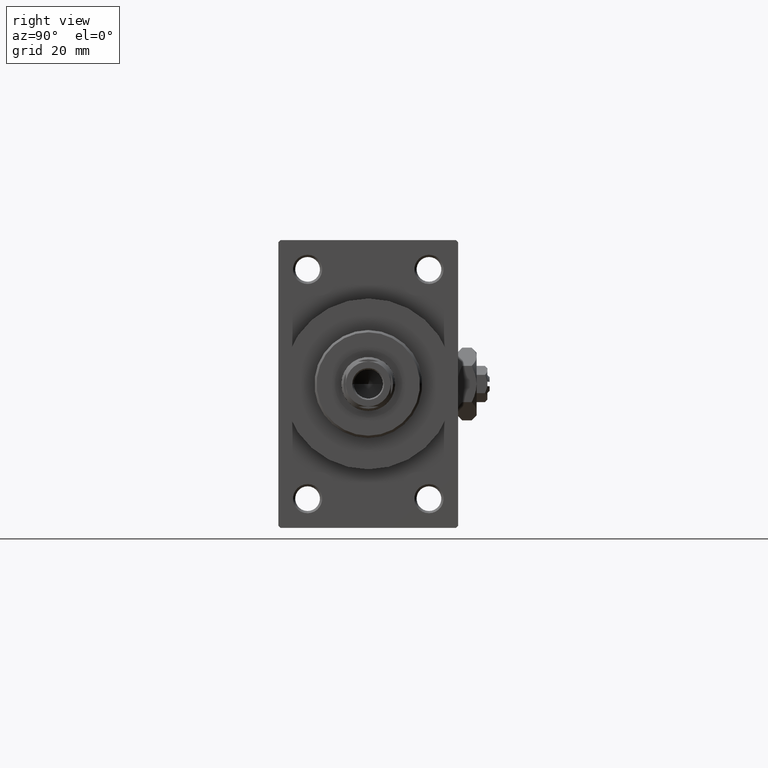
[diagram: clean part render]
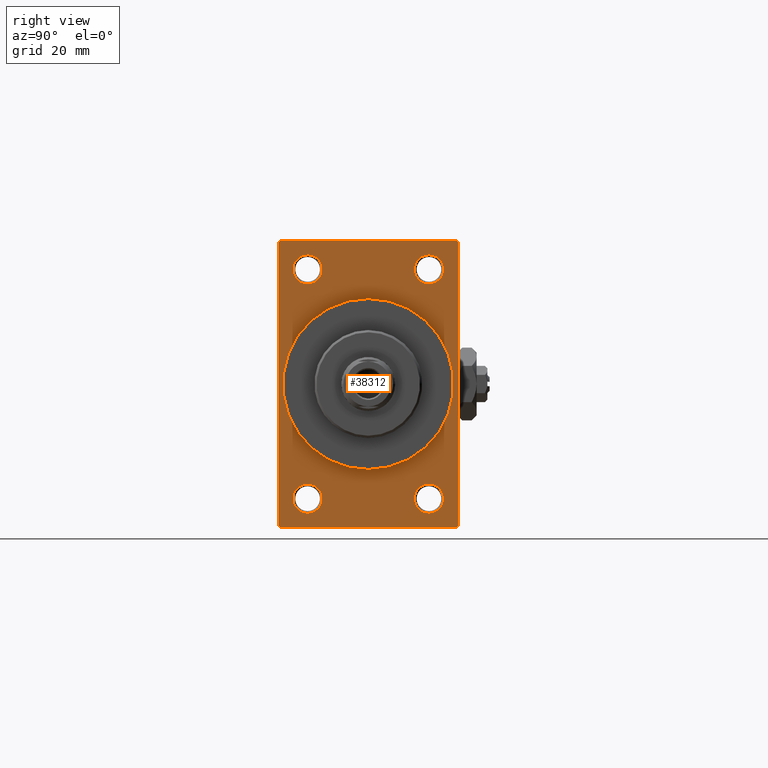
[diagram: same view with one face highlighted and labeled with its STEP entity id]
A machine part, right view. The second image highlights one B-rep face of the part: STEP entity #38312.
In plain terms, the highlighted planar face has unit normal (-1, 0, 0).
Its self-contained STEP definition (entity closure, byte-faithful):
#140 = VERTEX_POINT ( 'NONE', #47750 ) ;
#340 = DIRECTION ( 'NONE',  ( 0.000000000000000000, -1.000000000000000000, -1.734723475976807094E-16 ) ) ;
#355 = EDGE_CURVE ( 'NONE', #14639, #13511, #36569, .T. ) ;
#580 = DIRECTION ( 'NONE',  ( -1.000000000000000000, -0.000000000000000000, -0.000000000000000000 ) ) ;
#670 = VECTOR ( 'NONE', #42903, 1000.000000000000114 ) ;
#731 = EDGE_CURVE ( 'NONE', #42616, #19761, #23888, .T. ) ;
#1188 = DIRECTION ( 'NONE',  ( 0.000000000000000000, 0.000000000000000000, 1.000000000000000000 ) ) ;
#1371 = DIRECTION ( 'NONE',  ( 1.000000000000000000, 0.000000000000000000, 0.000000000000000000 ) ) ;
#1381 = ORIENTED_EDGE ( 'NONE', *, *, #43593, .F. ) ;
#1456 = CARTESIAN_POINT ( 'NONE',  ( 109.0000000000000142, -13.50000000000000533, -22.24999999999999289 ) ) ;
#1626 = ORIENTED_EDGE ( 'NONE', *, *, #32513, .T. ) ;
#1651 = CARTESIAN_POINT ( 'NONE',  ( 109.0000000000000142, -19.49999999999998579, 31.99999999999999289 ) ) ;
#2422 = AXIS2_PLACEMENT_3D ( 'NONE', #28358, #42796, #16706 ) ;
#2456 = AXIS2_PLACEMENT_3D ( 'NONE', #8957, #11953, #42253 ) ;
#2851 = CIRCLE ( 'NONE', #4449, 3.249999999999961364 ) ;
#3101 = CARTESIAN_POINT ( 'NONE',  ( 109.0000000000000142, -20.00000000000000000, 31.49999999999997868 ) ) ;
#3104 = CARTESIAN_POINT ( 'NONE',  ( 109.0000000000000142, 20.00000000000000000, 31.49999999999998579 ) ) ;
#3533 = CIRCLE ( 'NONE', #42369, 19.00000000000000000 ) ;
#3656 = ORIENTED_EDGE ( 'NONE', *, *, #16504, .F. ) ;
#4449 = AXIS2_PLACEMENT_3D ( 'NONE', #35646, #31915, #47087 ) ;
#4557 = VECTOR ( 'NONE', #26390, 1000.000000000000000 ) ;
#6082 = EDGE_LOOP ( 'NONE', ( #8609, #45935 ) ) ;
#6901 = FACE_BOUND ( 'NONE', #26643, .T. ) ;
#7665 = VECTOR ( 'NONE', #45961, 1000.000000000000000 ) ;
#8609 = ORIENTED_EDGE ( 'NONE', *, *, #14008, .T. ) ;
#8790 = DIRECTION ( 'NONE',  ( 0.000000000000000000, 0.000000000000000000, -1.000000000000000000 ) ) ;
#8941 = VERTEX_POINT ( 'NONE', #1651 ) ;
#8957 = CARTESIAN_POINT ( 'NONE',  ( 109.0000000000000142, 0.000000000000000000, 0.000000000000000000 ) ) ;
#9477 = VERTEX_POINT ( 'NONE', #31106 ) ;
#9803 = DIRECTION ( 'NONE',  ( -0.000000000000000000, -0.7071067811865474617, -0.7071067811865474617 ) ) ;
#10054 = VECTOR ( 'NONE', #21993, 1000.000000000000000 ) ;
#11122 = CARTESIAN_POINT ( 'NONE',  ( 109.0000000000000142, 13.49999999999999822, -22.24999999999999645 ) ) ;
#11252 = LINE ( 'NONE', #15226, #4557 ) ;
#11627 = VECTOR ( 'NONE', #23317, 1000.000000000000114 ) ;
#11953 = DIRECTION ( 'NONE',  ( 1.000000000000000000, 0.000000000000000000, 0.000000000000000000 ) ) ;
#12080 = CARTESIAN_POINT ( 'NONE',  ( 109.0000000000000142, -13.50000000000000533, -25.49999999999999645 ) ) ;
#12708 = DIRECTION ( 'NONE',  ( -1.000000000000000000, -0.000000000000000000, -0.000000000000000000 ) ) ;
#13437 = AXIS2_PLACEMENT_3D ( 'NONE', #28727, #39931, #43907 ) ;
#13511 = VERTEX_POINT ( 'NONE', #29193 ) ;
#13524 = CARTESIAN_POINT ( 'NONE',  ( 109.0000000000000142, 2.326828918379970970E-15, -19.00000000000000000 ) ) ;
#14008 = EDGE_CURVE ( 'NONE', #13511, #14639, #29755, .T. ) ;
#14293 = LINE ( 'NONE', #37611, #10054 ) ;
#14639 = VERTEX_POINT ( 'NONE', #11122 ) ;
#14835 = EDGE_CURVE ( 'NONE', #30104, #36426, #2851, .T. ) ;
#14930 = LINE ( 'NONE', #38750, #7665 ) ;
#15205 = LINE ( 'NONE', #29596, #35487 ) ;
#15226 = CARTESIAN_POINT ( 'NONE',  ( 109.0000000000000142, -19.49999999999998579, -32.00000000000000000 ) ) ;
#16178 = CARTESIAN_POINT ( 'NONE',  ( 109.0000000000000142, 13.49999999999999822, -25.50000000000000000 ) ) ;
#16504 = EDGE_CURVE ( 'NONE', #37227, #36022, #14930, .T. ) ;
#16706 = DIRECTION ( 'NONE',  ( 0.000000000000000000, 0.000000000000000000, 1.000000000000000000 ) ) ;
#16758 = VERTEX_POINT ( 'NONE', #26765 ) ;
#17227 = VERTEX_POINT ( 'NONE', #36073 ) ;
#17906 = AXIS2_PLACEMENT_3D ( 'NONE', #46720, #12708, #46478 ) ;
#18359 = EDGE_CURVE ( 'NONE', #32945, #16758, #11252, .T. ) ;
#19586 = ORIENTED_EDGE ( 'NONE', *, *, #731, .T. ) ;
#19761 = VERTEX_POINT ( 'NONE', #44927 ) ;
#20030 = DIRECTION ( 'NONE',  ( -1.000000000000000000, -0.000000000000000000, -0.000000000000000000 ) ) ;
#20043 = EDGE_CURVE ( 'NONE', #37227, #28425, #48913, .T. ) ;
#20156 = DIRECTION ( 'NONE',  ( -1.000000000000000000, -0.000000000000000000, -0.000000000000000000 ) ) ;
#20180 = CARTESIAN_POINT ( 'NONE',  ( 109.0000000000000142, 20.00000000000000000, -31.49999999999998579 ) ) ;
#20649 = EDGE_CURVE ( 'NONE', #9477, #32945, #14293, .T. ) ;
#20930 = EDGE_CURVE ( 'NONE', #17227, #16758, #15205, .T. ) ;
#20978 = ORIENTED_EDGE ( 'NONE', *, *, #35198, .T. ) ;
#21435 = EDGE_CURVE ( 'NONE', #34750, #37402, #3533, .T. ) ;
#21524 = ORIENTED_EDGE ( 'NONE', *, *, #42296, .T. ) ;
#21785 = EDGE_CURVE ( 'NONE', #36426, #30104, #41564, .T. ) ;
#21796 = FACE_BOUND ( 'NONE', #34884, .T. ) ;
#21971 = LINE ( 'NONE', #3101, #32482 ) ;
#21993 = DIRECTION ( 'NONE',  ( 0.000000000000000000, 0.000000000000000000, -1.000000000000000000 ) ) ;
#22670 = LINE ( 'NONE', #23389, #34548 ) ;
#23302 = ORIENTED_EDGE ( 'NONE', *, *, #20930, .F. ) ;
#23303 = ORIENTED_EDGE ( 'NONE', *, *, #21435, .F. ) ;
#23317 = DIRECTION ( 'NONE',  ( 0.000000000000000000, -0.7071067811865474617, 0.7071067811865474617 ) ) ;
#23389 = CARTESIAN_POINT ( 'NONE',  ( 109.0000000000000142, 20.00000000000000000, 32.00000000000000000 ) ) ;
#23888 = CIRCLE ( 'NONE', #42116, 3.250000000000002665 ) ;
#24439 = ORIENTED_EDGE ( 'NONE', *, *, #18359, .T. ) ;
#24450 = AXIS2_PLACEMENT_3D ( 'NONE', #45369, #44637, #29710 ) ;
#24532 = ORIENTED_EDGE ( 'NONE', *, *, #21785, .T. ) ;
#25504 = FACE_OUTER_BOUND ( 'NONE', #40190, .T. ) ;
#25951 = CIRCLE ( 'NONE', #45781, 3.250000000000002665 ) ;
#26178 = CIRCLE ( 'NONE', #2422, 3.250000000000002665 ) ;
#26374 = CARTESIAN_POINT ( 'NONE',  ( 109.0000000000000142, -20.00000000000000000, -31.49999999999997868 ) ) ;
#26390 = DIRECTION ( 'NONE',  ( 0.000000000000000000, 0.7071067811865426878, -0.7071067811865524577 ) ) ;
#26625 = DIRECTION ( 'NONE',  ( 0.000000000000000000, 0.000000000000000000, 1.000000000000000000 ) ) ;
#26643 = EDGE_LOOP ( 'NONE', ( #35784, #1626 ) ) ;
#26765 = CARTESIAN_POINT ( 'NONE',  ( 109.0000000000000142, -19.49999999999998579, -32.00000000000000000 ) ) ;
#27209 = DIRECTION ( 'NONE',  ( -1.000000000000000000, -0.000000000000000000, -0.000000000000000000 ) ) ;
#27404 = CARTESIAN_POINT ( 'NONE',  ( 109.0000000000000142, 0.000000000000000000, 0.000000000000000000 ) ) ;
#28358 = CARTESIAN_POINT ( 'NONE',  ( 109.0000000000000142, -13.50000000000000533, -25.49999999999999645 ) ) ;
#28425 = VERTEX_POINT ( 'NONE', #35561 ) ;
#28727 = CARTESIAN_POINT ( 'NONE',  ( 109.0000000000000142, -13.50000000000000178, 25.50000000000000355 ) ) ;
#29193 = CARTESIAN_POINT ( 'NONE',  ( 109.0000000000000142, 13.49999999999999822, -28.75000000000000000 ) ) ;
#29296 = ORIENTED_EDGE ( 'NONE', *, *, #29428, .T. ) ;
#29428 = EDGE_CURVE ( 'NONE', #28425, #8941, #22670, .T. ) ;
#29455 = ORIENTED_EDGE ( 'NONE', *, *, #38197, .T. ) ;
#29466 = FACE_BOUND ( 'NONE', #6082, .T. ) ;
#29596 = CARTESIAN_POINT ( 'NONE',  ( 109.0000000000000142, 20.00000000000000000, -32.00000000000000000 ) ) ;
#29710 = DIRECTION ( 'NONE',  ( -0.000000000000000000, 0.000000000000000000, 1.000000000000000000 ) ) ;
#29755 = CIRCLE ( 'NONE', #17906, 3.250000000000002665 ) ;
#29874 = ORIENTED_EDGE ( 'NONE', *, *, #20043, .T. ) ;
#30104 = VERTEX_POINT ( 'NONE', #37940 ) ;
#30198 = FACE_BOUND ( 'NONE', #40976, .T. ) ;
#30434 = AXIS2_PLACEMENT_3D ( 'NONE', #31070, #20156, #35286 ) ;
#31070 = CARTESIAN_POINT ( 'NONE',  ( 109.0000000000000142, 13.49999999999999822, 25.50000000000000355 ) ) ;
#31106 = CARTESIAN_POINT ( 'NONE',  ( 109.0000000000000142, -20.00000000000000000, 31.49999999999997868 ) ) ;
#31460 = CARTESIAN_POINT ( 'NONE',  ( 109.0000000000000142, 20.00000000000000000, -31.49999999999998579 ) ) ;
#31915 = DIRECTION ( 'NONE',  ( -1.000000000000000000, -0.000000000000000000, -0.000000000000000000 ) ) ;
#32482 = VECTOR ( 'NONE', #9803, 1000.000000000000114 ) ;
#32513 = EDGE_CURVE ( 'NONE', #34258, #140, #25951, .T. ) ;
#32747 = CARTESIAN_POINT ( 'NONE',  ( 109.0000000000000142, -13.50000000000000178, 28.75000000000000355 ) ) ;
#32867 = CARTESIAN_POINT ( 'NONE',  ( 109.0000000000000142, 13.49999999999999822, 28.74999999999996803 ) ) ;
#32945 = VERTEX_POINT ( 'NONE', #26374 ) ;
#34258 = VERTEX_POINT ( 'NONE', #1456 ) ;
#34548 = VECTOR ( 'NONE', #340, 1000.000000000000000 ) ;
#34750 = VERTEX_POINT ( 'NONE', #13524 ) ;
#34820 = CIRCLE ( 'NONE', #13437, 3.250000000000002665 ) ;
#34884 = EDGE_LOOP ( 'NONE', ( #38954, #24532 ) ) ;
#34963 = AXIS2_PLACEMENT_3D ( 'NONE', #16178, #580, #26625 ) ;
#35198 = EDGE_CURVE ( 'NONE', #17227, #36022, #43151, .T. ) ;
#35286 = DIRECTION ( 'NONE',  ( 0.000000000000000000, 0.000000000000000000, 1.000000000000000000 ) ) ;
#35487 = VECTOR ( 'NONE', #48240, 1000.000000000000000 ) ;
#35561 = CARTESIAN_POINT ( 'NONE',  ( 109.0000000000000142, 19.49999999999998579, 32.00000000000000000 ) ) ;
#35646 = CARTESIAN_POINT ( 'NONE',  ( 109.0000000000000142, 13.49999999999999822, 25.50000000000000355 ) ) ;
#35784 = ORIENTED_EDGE ( 'NONE', *, *, #43261, .T. ) ;
#36022 = VERTEX_POINT ( 'NONE', #20180 ) ;
#36073 = CARTESIAN_POINT ( 'NONE',  ( 109.0000000000000142, 19.49999999999998579, -32.00000000000000000 ) ) ;
#36426 = VERTEX_POINT ( 'NONE', #32867 ) ;
#36569 = CIRCLE ( 'NONE', #34963, 3.250000000000002665 ) ;
#36924 = PLANE ( 'NONE',  #24450 ) ;
#37227 = VERTEX_POINT ( 'NONE', #3104 ) ;
#37402 = VERTEX_POINT ( 'NONE', #46753 ) ;
#37482 = CARTESIAN_POINT ( 'NONE',  ( 109.0000000000000142, 19.49999999999998579, 32.00000000000000000 ) ) ;
#37611 = CARTESIAN_POINT ( 'NONE',  ( 109.0000000000000142, -20.00000000000000000, 31.99999999999999289 ) ) ;
#37940 = CARTESIAN_POINT ( 'NONE',  ( 109.0000000000000142, 13.49999999999999822, 22.25000000000004263 ) ) ;
#38197 = EDGE_CURVE ( 'NONE', #19761, #42616, #34820, .T. ) ;
#38312 = ADVANCED_FACE ( 'NONE', ( #45614, #6901, #29466, #21796, #30198, #25504 ), #36924, .F. ) ;
#38638 = ORIENTED_EDGE ( 'NONE', *, *, #20649, .T. ) ;
#38750 = CARTESIAN_POINT ( 'NONE',  ( 109.0000000000000142, 20.00000000000000000, 32.00000000000000000 ) ) ;
#38914 = CARTESIAN_POINT ( 'NONE',  ( 109.0000000000000142, -13.50000000000000178, 25.50000000000000355 ) ) ;
#38954 = ORIENTED_EDGE ( 'NONE', *, *, #14835, .T. ) ;
#39931 = DIRECTION ( 'NONE',  ( -1.000000000000000000, -0.000000000000000000, -0.000000000000000000 ) ) ;
#40190 = EDGE_LOOP ( 'NONE', ( #38638, #24439, #23302, #20978, #3656, #29874, #29296, #21524 ) ) ;
#40489 = CIRCLE ( 'NONE', #2456, 19.00000000000000000 ) ;
#40976 = EDGE_LOOP ( 'NONE', ( #1381, #23303 ) ) ;
#41564 = CIRCLE ( 'NONE', #30434, 3.249999999999961364 ) ;
#42116 = AXIS2_PLACEMENT_3D ( 'NONE', #38914, #20030, #1188 ) ;
#42253 = DIRECTION ( 'NONE',  ( 0.000000000000000000, 0.000000000000000000, -1.000000000000000000 ) ) ;
#42296 = EDGE_CURVE ( 'NONE', #8941, #9477, #21971, .T. ) ;
#42369 = AXIS2_PLACEMENT_3D ( 'NONE', #27404, #1371, #8790 ) ;
#42381 = DIRECTION ( 'NONE',  ( 0.000000000000000000, 0.000000000000000000, 1.000000000000000000 ) ) ;
#42616 = VERTEX_POINT ( 'NONE', #32747 ) ;
#42796 = DIRECTION ( 'NONE',  ( -1.000000000000000000, -0.000000000000000000, -0.000000000000000000 ) ) ;
#42903 = DIRECTION ( 'NONE',  ( -0.000000000000000000, 0.7071067811865474617, 0.7071067811865474617 ) ) ;
#43151 = LINE ( 'NONE', #31460, #670 ) ;
#43261 = EDGE_CURVE ( 'NONE', #140, #34258, #26178, .T. ) ;
#43593 = EDGE_CURVE ( 'NONE', #37402, #34750, #40489, .T. ) ;
#43857 = EDGE_LOOP ( 'NONE', ( #29455, #19586 ) ) ;
#43907 = DIRECTION ( 'NONE',  ( 0.000000000000000000, 0.000000000000000000, 1.000000000000000000 ) ) ;
#44637 = DIRECTION ( 'NONE',  ( -1.000000000000000000, 0.000000000000000000, -0.000000000000000000 ) ) ;
#44927 = CARTESIAN_POINT ( 'NONE',  ( 109.0000000000000142, -13.50000000000000178, 22.25000000000000000 ) ) ;
#45369 = CARTESIAN_POINT ( 'NONE',  ( 109.0000000000000142, 0.000000000000000000, 0.000000000000000000 ) ) ;
#45614 = FACE_BOUND ( 'NONE', #43857, .T. ) ;
#45781 = AXIS2_PLACEMENT_3D ( 'NONE', #12080, #27209, #42381 ) ;
#45935 = ORIENTED_EDGE ( 'NONE', *, *, #355, .T. ) ;
#45961 = DIRECTION ( 'NONE',  ( 0.000000000000000000, 0.000000000000000000, -1.000000000000000000 ) ) ;
#46478 = DIRECTION ( 'NONE',  ( 0.000000000000000000, 0.000000000000000000, 1.000000000000000000 ) ) ;
#46720 = CARTESIAN_POINT ( 'NONE',  ( 109.0000000000000142, 13.49999999999999822, -25.50000000000000000 ) ) ;
#46753 = CARTESIAN_POINT ( 'NONE',  ( 109.0000000000000142, 0.000000000000000000, 19.00000000000000000 ) ) ;
#47087 = DIRECTION ( 'NONE',  ( 0.000000000000000000, 0.000000000000000000, 1.000000000000000000 ) ) ;
#47750 = CARTESIAN_POINT ( 'NONE',  ( 109.0000000000000142, -13.50000000000000533, -28.74999999999999645 ) ) ;
#48240 = DIRECTION ( 'NONE',  ( 0.000000000000000000, -1.000000000000000000, 0.000000000000000000 ) ) ;
#48913 = LINE ( 'NONE', #37482, #11627 ) ;